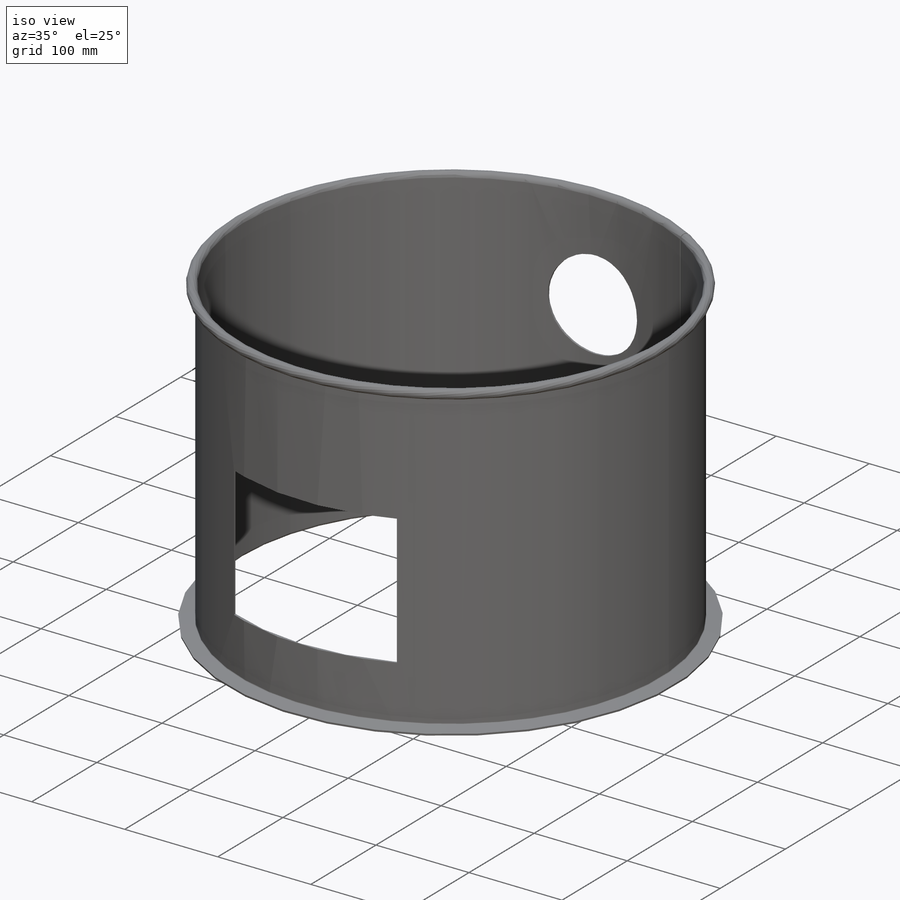
[diagram: iso view]
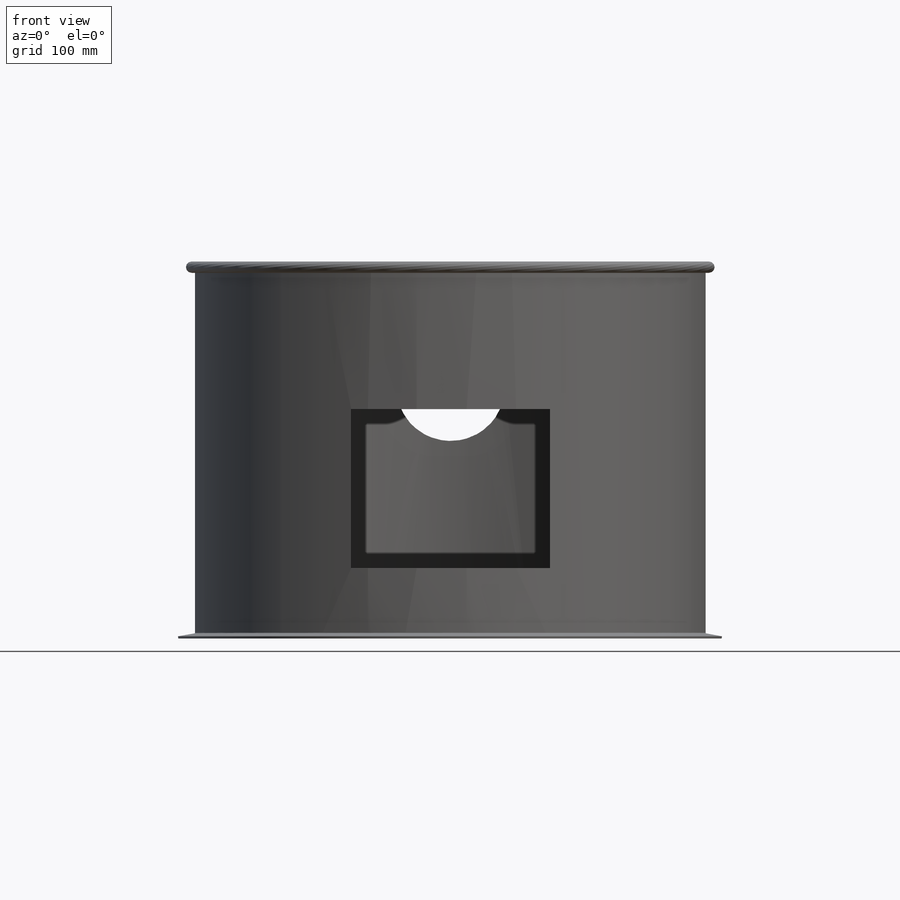
[diagram: front view]
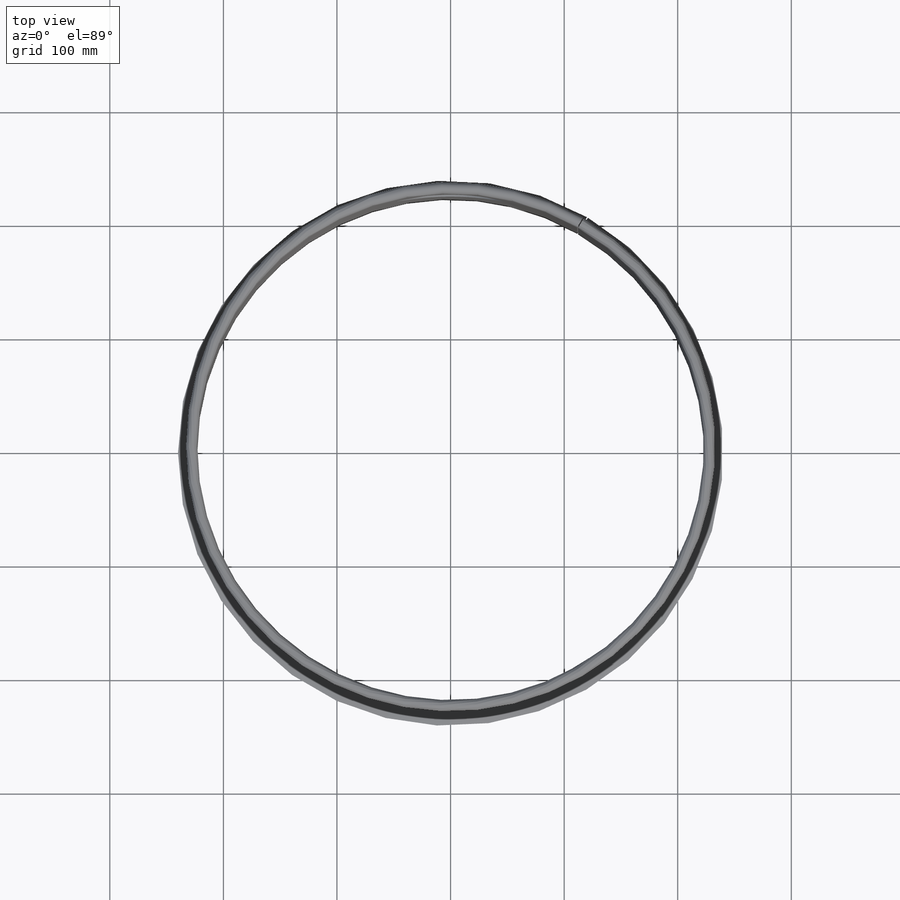
[diagram: top view]
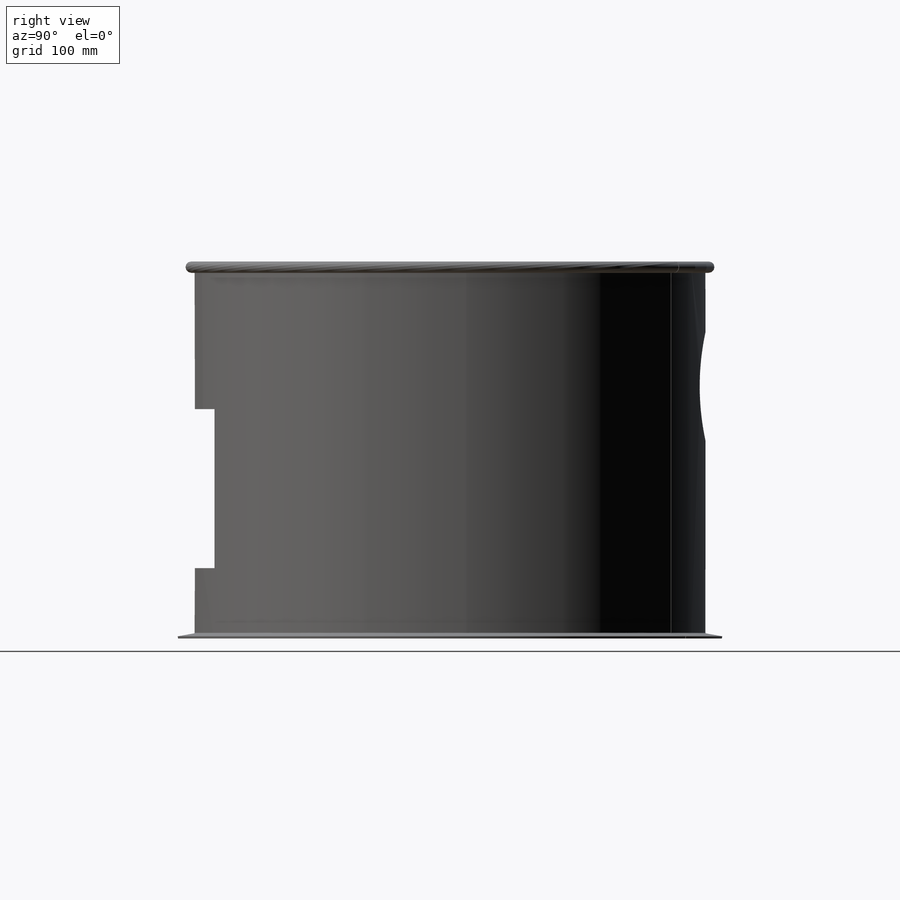
[diagram: right view]
SOLIDWORKS PART (.sldprt)
format: sldprt  version: not decoded by parser v0  size: 376,832 bytes
history: native  units: mm
features: sketch x6, cut_extrude x2, material x1, plane x1, sheet_metal_op x1 + 4 further entries (+11 scaffold rows collapsed)
feature tree (26):
  scaffold x11  (default folders/planes/origin — collapsed)
  material  "Nerezová ocel (feritická)"
  sketch  "Skica1"  dims[c1.D1=480.0mm c1.D2=240.0mm c2.D2=~52.637105deg c3.D2=~523.598776mm c3.D3=1.0mm]
  plane  "Rovina1"
  sketch  "Skica2"  dims[D2=3.0mm D1=~1745.329252mm D3=325.0mm D4=450.0mm]
  sheet_metal_op  "Plechový díl4"  Taženýohyb1_2=0 Taženýohyb2_1=0
  sketch  "Skica11"  dims[D2=96.0mm D1=220.0mm D3=220.0mm]
  cut_extrude  "Odebrat vysunutím1"  [1 undecoded]
  sketch  "Skica12"  dims[D1=140.0mm D2=175.0mm D3=60.0mm]
  cut_extrude  "Odebrat vysunutím2"  [1 undecoded]
  "Rozvinutý tvar4"
  sketch  "Čáry ohybu4"
  sketch  "Vymezovací rámeček4"
  "Rozvinutí-<Taženýohyb1_2>1"
  "Rozvinutí-<Taženýohyb2_1>1"
  "Transformace skici1"
decode coverage: 5 of 9 modeling features carry decoded parameters; 4 rows unclassified (native names shown)
note: ~ marks probable driven/reference dimensions
note: 2 parameter values undecoded
note: suppression state not decoded; provenance and decode notes live in map.json
